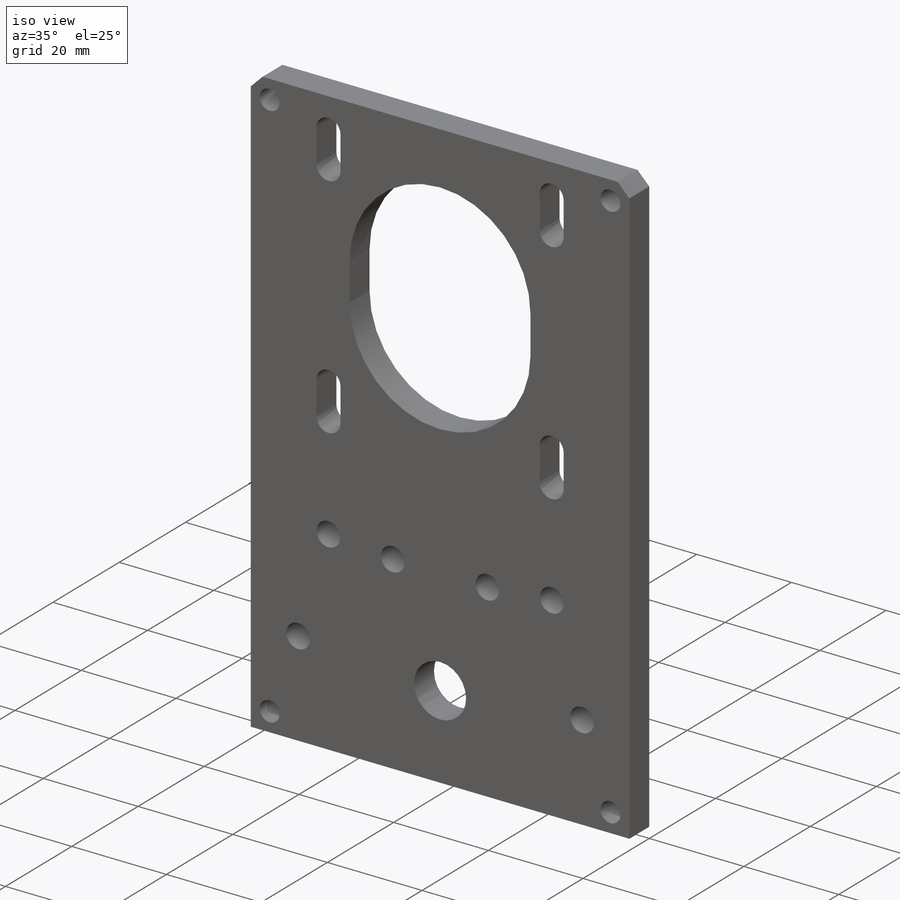
[diagram: iso view]
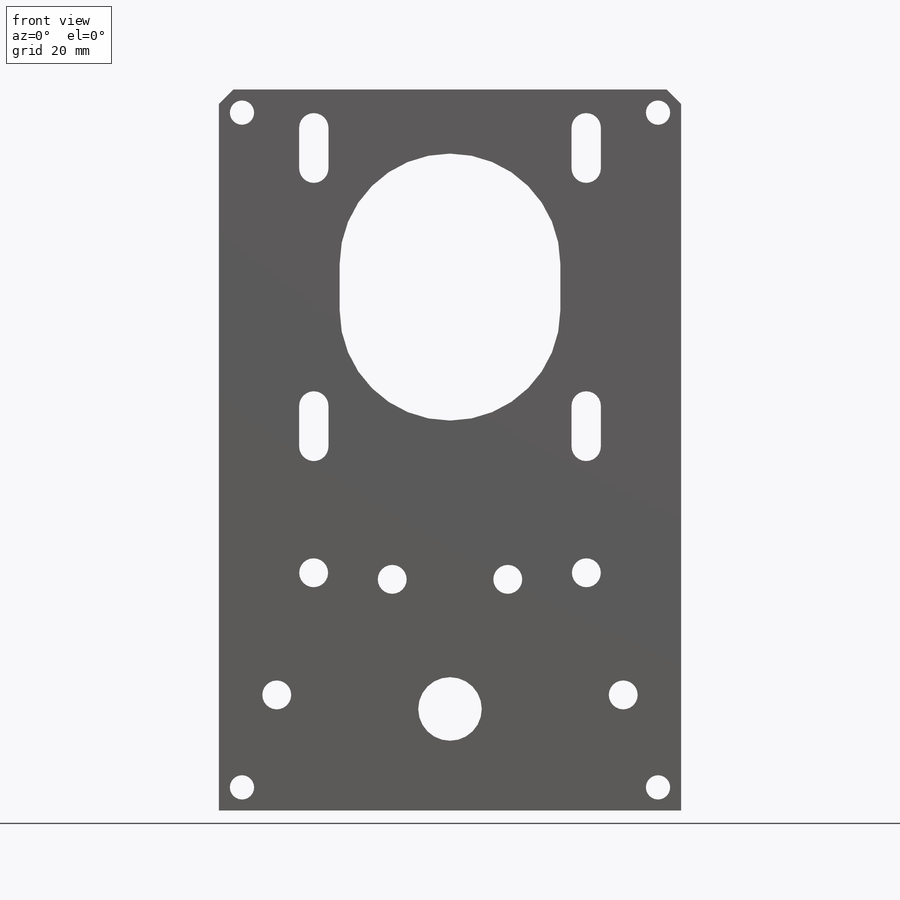
[diagram: front view]
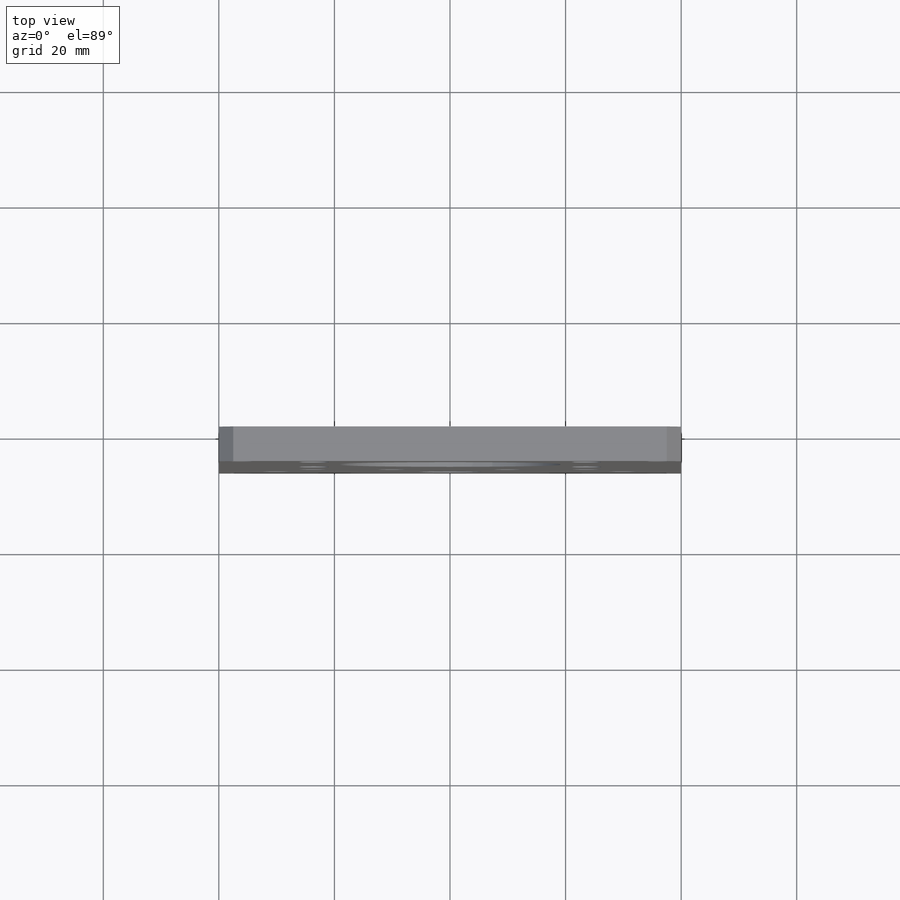
[diagram: top view]
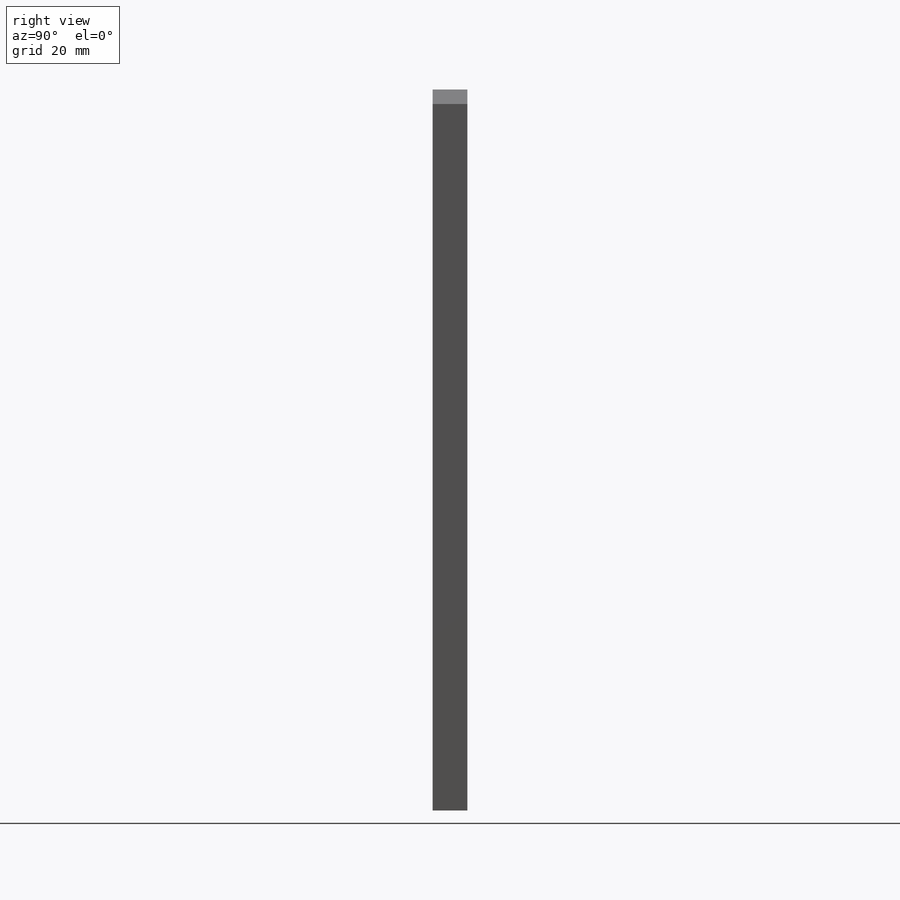
[diagram: right view]
SOLIDWORKS PART (.sldprt)
format: sldprt  version: not decoded by parser v0  size: 333,312 bytes
history: native  units: mm
features: sketch x5, thread x4, hole x2, material x1, extrude x1, chamfer x1 (+13 scaffold rows collapsed)
feature tree (27):
  scaffold x13  (default folders/planes/origin — collapsed)
  material  "6061-T6 (SS)"
  sketch  "Sketch1"  dims[D5=19.1mm D7=11.0mm D10=2.54mm D1=80.0mm D2=124.77mm D3=8.0mm D4=30.19mm D6=17.57mm D8=47.14mm D9=7.0mm D11=48.14mm]
  extrude  "Boss-Extrude1"  Depth=6mm
  hole  "Ø5.0 (5) Diameter Hole1"  Diameter=5mm Depth=6mm
  sketch  "Sketch3"  dims[D1=20.0mm D2=29.98mm D3=21.14mm D4=20.0mm D5=13.6mm D6=40.0mm]
  sketch  "Sketch2"  dims[hole-wizard template sketch: 60 standard entries collapsed; hole parameters kept: c18.Thru Hole Depth=6.0mm]
  hole  "M5x0.8 Tapped Hole1"  Diameter=4.2mm Depth=6mm
  sketch  "Sketch5"  dims[D1=72.0mm D2=116.77mm]
  sketch  "Sketch4"  dims[hole-wizard template sketch: 60 standard entries collapsed; hole parameters kept: c18.Thru Tap Drill Depth=6.0mm]
  thread  "Hole Thread1"  Diameter=5mm  [1 undecoded]
  thread  "Hole Thread2"  Diameter=5mm  [1 undecoded]
  thread  "Hole Thread3"  Diameter=5mm  [1 undecoded]
  thread  "Hole Thread4"  Diameter=5mm  [1 undecoded]
  chamfer  "Chamfer1"  Distance=2.5mm Angle=45deg
decode coverage: 13 of 13 modeling features carry decoded parameters
note: ~ marks probable driven/reference dimensions
note: 4 parameter values undecoded
note: suppression state not decoded; provenance and decode notes live in map.json
